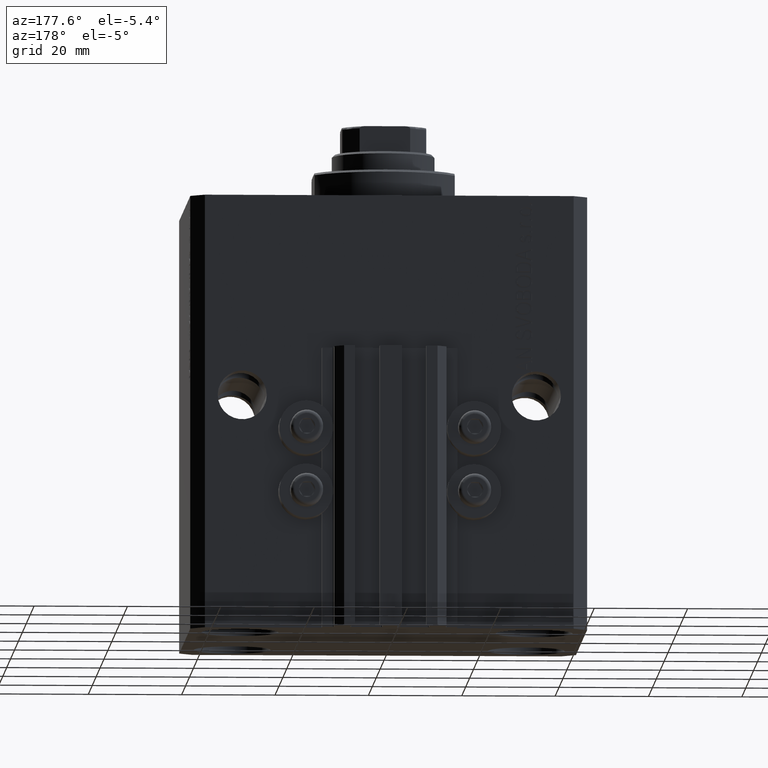
[diagram: clean part render]
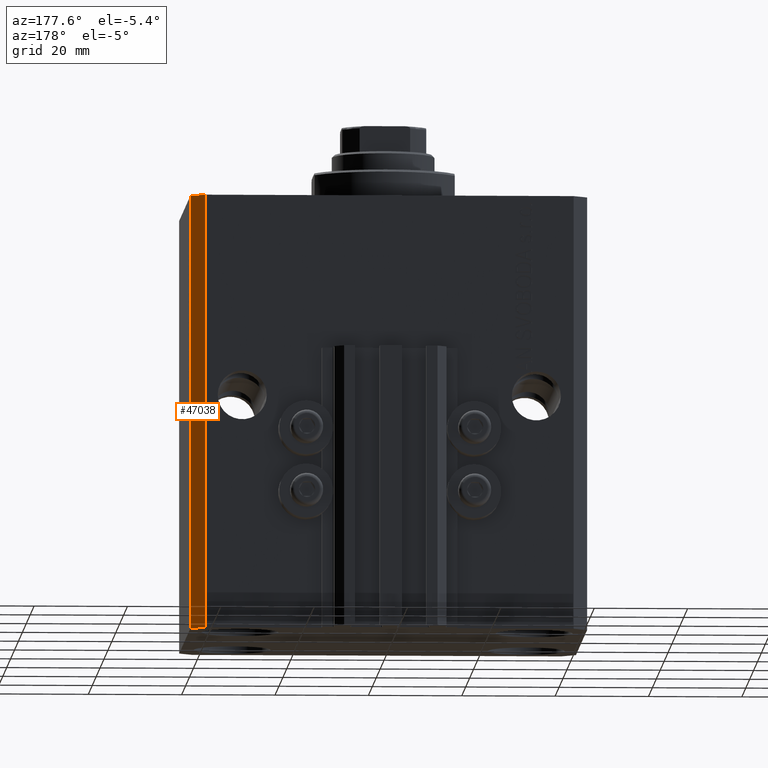
[diagram: same view with one face highlighted and labeled with its STEP entity id]
A machine part, auxiliary view. The second image highlights one B-rep face of the part: STEP entity #47038.
In plain terms, the highlighted planar face has unit normal (0.7071, 0.7071, 0).
Its self-contained STEP definition (entity closure, byte-faithful):
#853 = EDGE_LOOP ( 'NONE', ( #21130, #4455, #9421, #45592 ) ) ;
#2073 = DIRECTION ( 'NONE',  ( 0.7071067811865594521, 0.7071067811865355823, -0.000000000000000000 ) ) ;
#3842 = DIRECTION ( 'NONE',  ( -0.7071067811865356934, 0.7071067811865594521, 0.000000000000000000 ) ) ;
#4455 = ORIENTED_EDGE ( 'NONE', *, *, #44123, .F. ) ;
#5124 = EDGE_CURVE ( 'NONE', #6971, #22432, #12790, .T. ) ;
#5674 = DIRECTION ( 'NONE',  ( -0.7071067811865355823, 0.7071067811865594521, 0.000000000000000000 ) ) ;
#6971 = VERTEX_POINT ( 'NONE', #15530 ) ;
#7175 = VECTOR ( 'NONE', #25753, 1000.000000000000114 ) ;
#9421 = ORIENTED_EDGE ( 'NONE', *, *, #27554, .T. ) ;
#12379 = CARTESIAN_POINT ( 'NONE',  ( 42.50000000000051870, 28.49999999999995381, -93.00000000000000000 ) ) ;
#12790 = LINE ( 'NONE', #31317, #46003 ) ;
#15378 = CARTESIAN_POINT ( 'NONE',  ( 42.50000000000051870, 28.49999999999995381, -93.00000000000000000 ) ) ;
#15530 = CARTESIAN_POINT ( 'NONE',  ( 39.50000000000056843, 31.50000000000000000, -93.00000000000000000 ) ) ;
#17295 = AXIS2_PLACEMENT_3D ( 'NONE', #23982, #2073, #5674 ) ;
#19786 = VERTEX_POINT ( 'NONE', #15378 ) ;
#21130 = ORIENTED_EDGE ( 'NONE', *, *, #23918, .F. ) ;
#21643 = LINE ( 'NONE', #36789, #41644 ) ;
#22139 = LINE ( 'NONE', #43787, #7175 ) ;
#22432 = VERTEX_POINT ( 'NONE', #33459 ) ;
#23918 = EDGE_CURVE ( 'NONE', #44693, #22432, #21643, .T. ) ;
#23982 = CARTESIAN_POINT ( 'NONE',  ( 42.50000000000051870, 28.49999999999995381, -93.00000000000000000 ) ) ;
#24234 = VECTOR ( 'NONE', #41738, 1000.000000000000000 ) ;
#25753 = DIRECTION ( 'NONE',  ( -0.7071067811865356934, 0.7071067811865594521, 0.000000000000000000 ) ) ;
#27112 = PLANE ( 'NONE',  #17295 ) ;
#27554 = EDGE_CURVE ( 'NONE', #19786, #6971, #22139, .T. ) ;
#27587 = FACE_OUTER_BOUND ( 'NONE', #853, .T. ) ;
#29781 = CARTESIAN_POINT ( 'NONE',  ( 42.50000000000051870, 28.49999999999995381, 0.000000000000000000 ) ) ;
#31317 = CARTESIAN_POINT ( 'NONE',  ( 39.50000000000056843, 31.50000000000000000, -93.00000000000000000 ) ) ;
#33459 = CARTESIAN_POINT ( 'NONE',  ( 39.50000000000056843, 31.50000000000000000, 0.000000000000000000 ) ) ;
#36789 = CARTESIAN_POINT ( 'NONE',  ( 42.50000000000051870, 28.49999999999995381, 0.000000000000000000 ) ) ;
#41260 = LINE ( 'NONE', #12379, #24234 ) ;
#41644 = VECTOR ( 'NONE', #3842, 1000.000000000000114 ) ;
#41738 = DIRECTION ( 'NONE',  ( 0.000000000000000000, 0.000000000000000000, 1.000000000000000000 ) ) ;
#43787 = CARTESIAN_POINT ( 'NONE',  ( 42.50000000000051870, 28.49999999999995381, -93.00000000000000000 ) ) ;
#44123 = EDGE_CURVE ( 'NONE', #19786, #44693, #41260, .T. ) ;
#44693 = VERTEX_POINT ( 'NONE', #29781 ) ;
#45592 = ORIENTED_EDGE ( 'NONE', *, *, #5124, .T. ) ;
#45993 = DIRECTION ( 'NONE',  ( 0.000000000000000000, 0.000000000000000000, 1.000000000000000000 ) ) ;
#46003 = VECTOR ( 'NONE', #45993, 1000.000000000000000 ) ;
#47038 = ADVANCED_FACE ( 'NONE', ( #27587 ), #27112, .T. ) ;